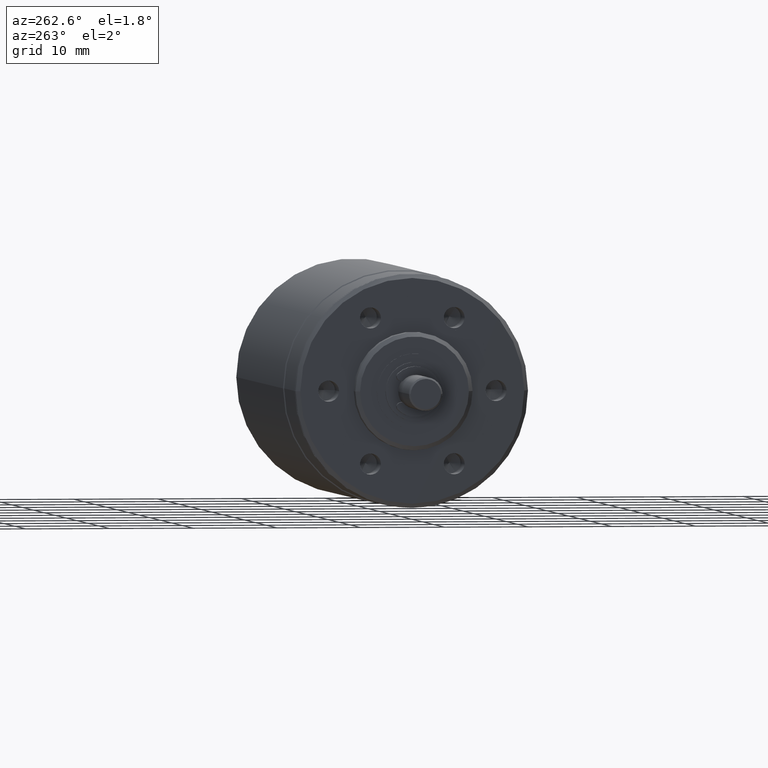
[diagram: clean part render]
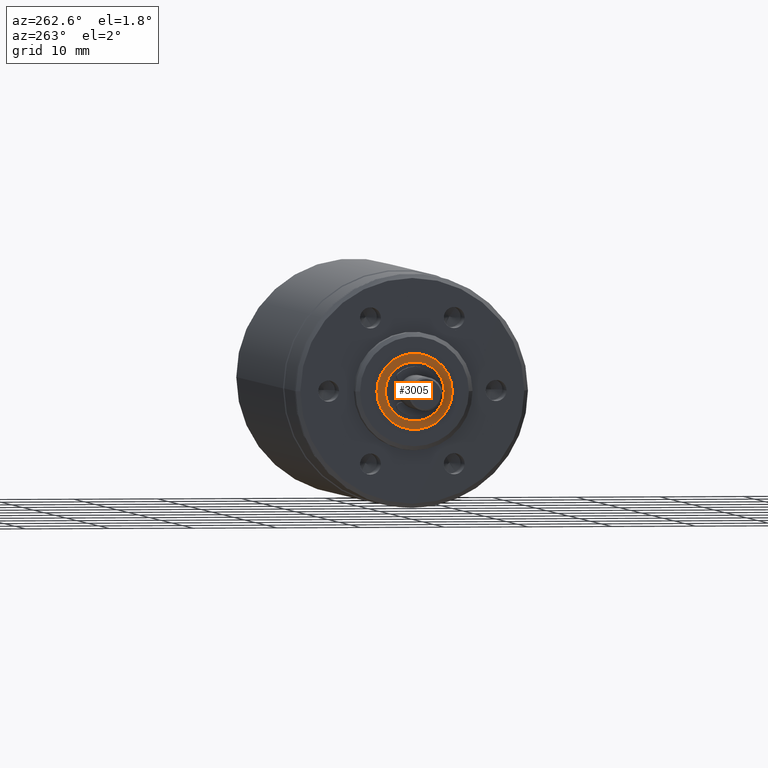
[diagram: same view with one face highlighted and labeled with its STEP entity id]
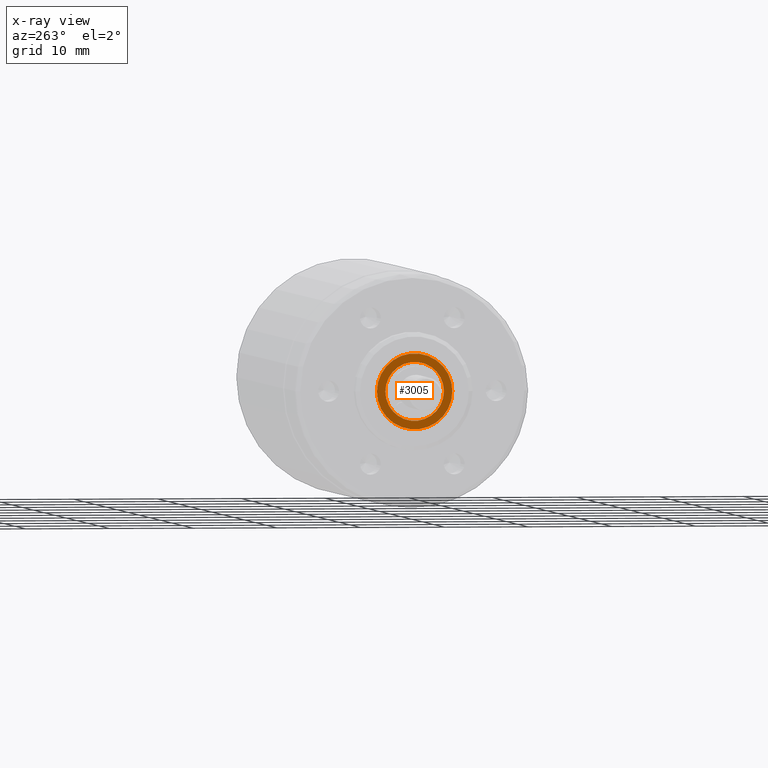
[diagram: x-ray of the same camera — body ghosted, the highlighted face saturated]
A machine part, auxiliary view. The second image highlights one B-rep face of the part: STEP entity #3005.
The next image is the same camera in x-ray: the body ghosted, the highlighted face saturated — about 0% of this face is hidden behind the body in this view.
In plain terms, the highlighted planar face has unit normal (1, 0, 0).
Its self-contained STEP definition (entity closure, byte-faithful):
#899=CARTESIAN_POINT('',(-3.245E1,0.E0,0.E0));
#900=DIRECTION('',(1.E0,0.E0,0.E0));
#901=DIRECTION('',(0.E0,1.E0,0.E0));
#902=AXIS2_PLACEMENT_3D('',#899,#900,#901);
#904=CARTESIAN_POINT('',(-3.245E1,0.E0,0.E0));
#905=DIRECTION('',(1.E0,0.E0,0.E0));
#906=DIRECTION('',(0.E0,-1.E0,0.E0));
#907=AXIS2_PLACEMENT_3D('',#904,#905,#906);
#909=CARTESIAN_POINT('',(-3.245E1,0.E0,0.E0));
#910=DIRECTION('',(-1.E0,0.E0,0.E0));
#911=DIRECTION('',(0.E0,1.E0,0.E0));
#912=AXIS2_PLACEMENT_3D('',#909,#910,#911);
#914=CARTESIAN_POINT('',(-3.245E1,0.E0,0.E0));
#915=DIRECTION('',(-1.E0,0.E0,0.E0));
#916=DIRECTION('',(0.E0,-1.E0,0.E0));
#917=AXIS2_PLACEMENT_3D('',#914,#915,#916);
#1641=CARTESIAN_POINT('',(-3.245E1,4.5E0,0.E0));
#1642=VERTEX_POINT('',#1641);
#1643=CARTESIAN_POINT('',(-3.245E1,-4.5E0,0.E0));
#1644=VERTEX_POINT('',#1643);
#1645=CARTESIAN_POINT('',(-3.245E1,3.5E0,0.E0));
#1646=CARTESIAN_POINT('',(-3.245E1,-3.5E0,0.E0));
#1647=VERTEX_POINT('',#1645);
#1648=VERTEX_POINT('',#1646);
#2990=CARTESIAN_POINT('',(-3.245E1,0.E0,0.E0));
#2991=DIRECTION('',(1.E0,0.E0,0.E0));
#2992=DIRECTION('',(0.E0,1.E0,0.E0));
#2993=AXIS2_PLACEMENT_3D('',#2990,#2991,#2992);
#2994=PLANE('',#2993);
#2995=ORIENTED_EDGE('',*,*,#2985,.T.);
#2996=ORIENTED_EDGE('',*,*,#2969,.T.);
#2997=EDGE_LOOP('',(#2995,#2996));
#2998=FACE_OUTER_BOUND('',#2997,.F.);
#3000=ORIENTED_EDGE('',*,*,#2999,.T.);
#3002=ORIENTED_EDGE('',*,*,#3001,.T.);
#3003=EDGE_LOOP('',(#3000,#3002));
#3004=FACE_BOUND('',#3003,.F.);
#3005=ADVANCED_FACE('',(#2998,#3004),#2994,.F.);
#903=CIRCLE('',#902,4.5E0);
#908=CIRCLE('',#907,4.5E0);
#913=CIRCLE('',#912,3.5E0);
#918=CIRCLE('',#917,3.5E0);
#2969=EDGE_CURVE('',#1644,#1642,#908,.T.);
#2985=EDGE_CURVE('',#1642,#1644,#903,.T.);
#2999=EDGE_CURVE('',#1647,#1648,#913,.T.);
#3001=EDGE_CURVE('',#1648,#1647,#918,.T.);